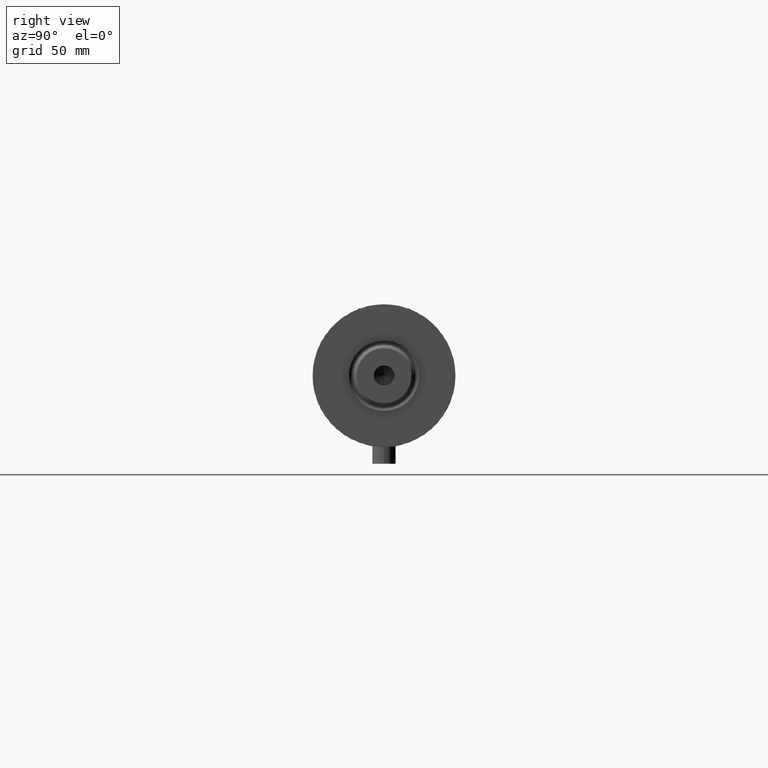
[diagram: clean part render]
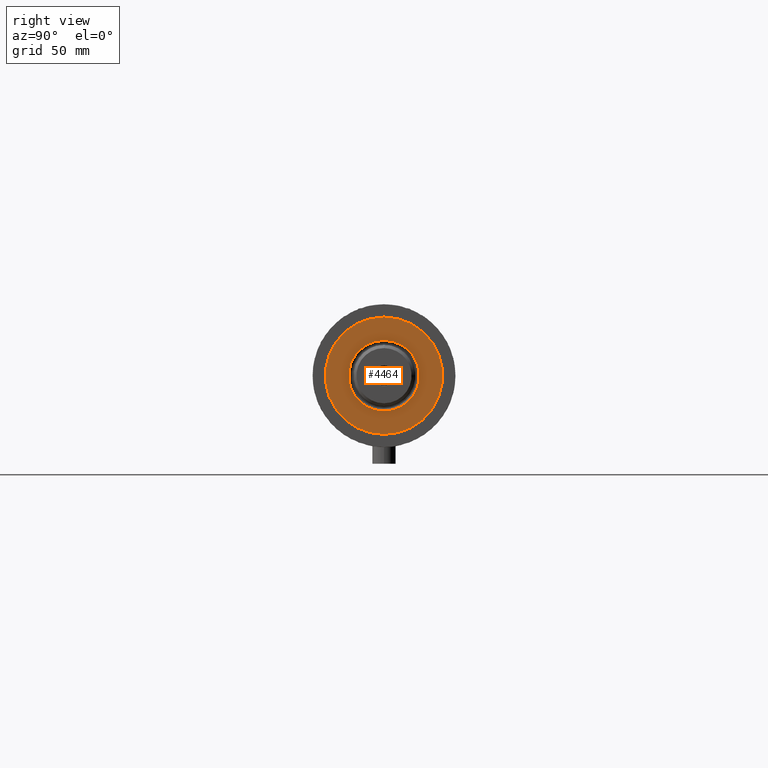
[diagram: same view with one face highlighted and labeled with its STEP entity id]
A machine part, right view. The second image highlights one B-rep face of the part: STEP entity #4464.
In plain terms, the highlighted planar face has unit normal (1, 0, -0).
Its self-contained STEP definition (entity closure, byte-faithful):
#71 = DIRECTION ( 'NONE',  ( 1.000000000000000000, 0.000000000000000000, 0.000000000000000000 ) ) ;
#87 = VERTEX_POINT ( 'NONE', #4328 ) ;
#113 = EDGE_LOOP ( 'NONE', ( #3621, #3590 ) ) ;
#202 = PLANE ( 'NONE',  #3512 ) ;
#232 = CIRCLE ( 'NONE', #1152, 18.04999999999996874 ) ;
#379 = CARTESIAN_POINT ( 'NONE',  ( 0.000000000000000000, 0.000000000000000000, 50.19999999999999574 ) ) ;
#392 = DIRECTION ( 'NONE',  ( 0.000000000000000000, 0.000000000000000000, 1.000000000000000000 ) ) ;
#654 = AXIS2_PLACEMENT_3D ( 'NONE', #3143, #2833, #3844 ) ;
#802 = AXIS2_PLACEMENT_3D ( 'NONE', #379, #3226, #2453 ) ;
#898 = CARTESIAN_POINT ( 'NONE',  ( 18.04999999999996874, 0.000000000000000000, 50.19999999999999574 ) ) ;
#948 = AXIS2_PLACEMENT_3D ( 'NONE', #3949, #392, #71 ) ;
#1032 = CARTESIAN_POINT ( 'NONE',  ( -30.00000000000000000, 0.000000000000000000, 50.19999999999999574 ) ) ;
#1152 = AXIS2_PLACEMENT_3D ( 'NONE', #4476, #1788, #3459 ) ;
#1250 = FACE_BOUND ( 'NONE', #2279, .T. ) ;
#1501 = EDGE_CURVE ( 'NONE', #1997, #87, #3720, .T. ) ;
#1788 = DIRECTION ( 'NONE',  ( -0.000000000000000000, -0.000000000000000000, -1.000000000000000000 ) ) ;
#1894 = CARTESIAN_POINT ( 'NONE',  ( 0.000000000000000000, 0.000000000000000000, 50.19999999999999574 ) ) ;
#1963 = CIRCLE ( 'NONE', #948, 30.00000000000000000 ) ;
#1989 = ORIENTED_EDGE ( 'NONE', *, *, #2145, .T. ) ;
#1997 = VERTEX_POINT ( 'NONE', #1032 ) ;
#2005 = ORIENTED_EDGE ( 'NONE', *, *, #2632, .T. ) ;
#2145 = EDGE_CURVE ( 'NONE', #3893, #4041, #3284, .T. ) ;
#2279 = EDGE_LOOP ( 'NONE', ( #2005, #1989 ) ) ;
#2453 = DIRECTION ( 'NONE',  ( 1.000000000000000000, 0.000000000000000000, 0.000000000000000000 ) ) ;
#2606 = DIRECTION ( 'NONE',  ( 1.000000000000000000, 0.000000000000000000, -0.000000000000000000 ) ) ;
#2632 = EDGE_CURVE ( 'NONE', #4041, #3893, #232, .T. ) ;
#2833 = DIRECTION ( 'NONE',  ( -0.000000000000000000, -0.000000000000000000, -1.000000000000000000 ) ) ;
#3143 = CARTESIAN_POINT ( 'NONE',  ( 0.000000000000000000, 0.000000000000000000, 50.19999999999999574 ) ) ;
#3226 = DIRECTION ( 'NONE',  ( 0.000000000000000000, 0.000000000000000000, 1.000000000000000000 ) ) ;
#3284 = CIRCLE ( 'NONE', #654, 18.04999999999996874 ) ;
#3301 = FACE_OUTER_BOUND ( 'NONE', #113, .T. ) ;
#3459 = DIRECTION ( 'NONE',  ( 1.000000000000000000, 0.000000000000000000, 0.000000000000000000 ) ) ;
#3512 = AXIS2_PLACEMENT_3D ( 'NONE', #1894, #3990, #2606 ) ;
#3590 = ORIENTED_EDGE ( 'NONE', *, *, #3898, .T. ) ;
#3621 = ORIENTED_EDGE ( 'NONE', *, *, #1501, .T. ) ;
#3720 = CIRCLE ( 'NONE', #802, 30.00000000000000000 ) ;
#3844 = DIRECTION ( 'NONE',  ( 1.000000000000000000, 0.000000000000000000, 0.000000000000000000 ) ) ;
#3893 = VERTEX_POINT ( 'NONE', #3903 ) ;
#3898 = EDGE_CURVE ( 'NONE', #87, #1997, #1963, .T. ) ;
#3903 = CARTESIAN_POINT ( 'NONE',  ( -18.04999999999996874, 2.210487472460968951E-15, 50.19999999999999574 ) ) ;
#3949 = CARTESIAN_POINT ( 'NONE',  ( 0.000000000000000000, 0.000000000000000000, 50.19999999999999574 ) ) ;
#3990 = DIRECTION ( 'NONE',  ( 0.000000000000000000, 0.000000000000000000, 1.000000000000000000 ) ) ;
#4041 = VERTEX_POINT ( 'NONE', #898 ) ;
#4328 = CARTESIAN_POINT ( 'NONE',  ( 30.00000000000000000, 3.673940397442058389E-15, 50.19999999999999574 ) ) ;
#4464 = ADVANCED_FACE ( 'NONE', ( #1250, #3301 ), #202, .T. ) ;
#4476 = CARTESIAN_POINT ( 'NONE',  ( 0.000000000000000000, 0.000000000000000000, 50.19999999999999574 ) ) ;